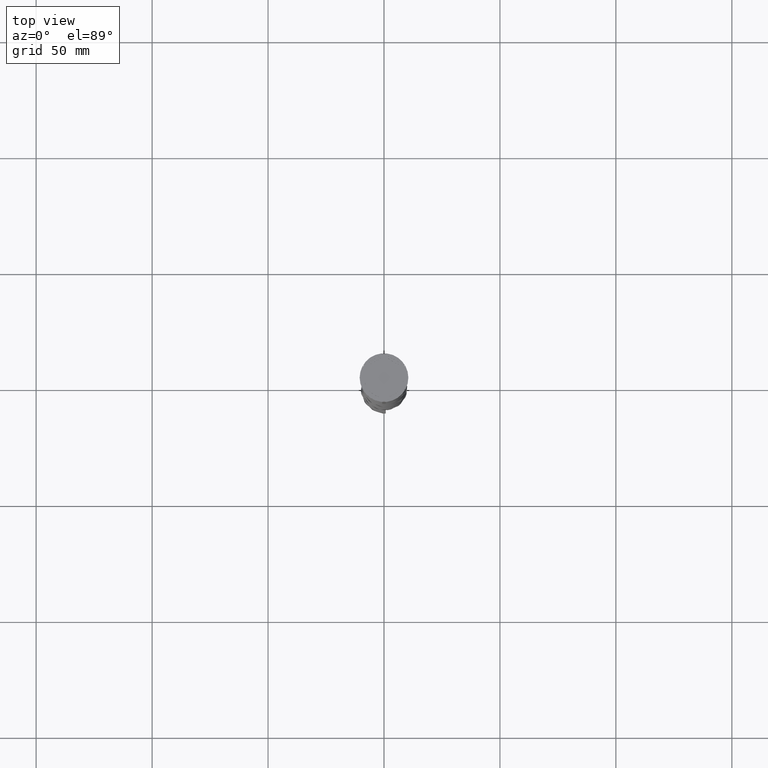
[diagram: clean part render]
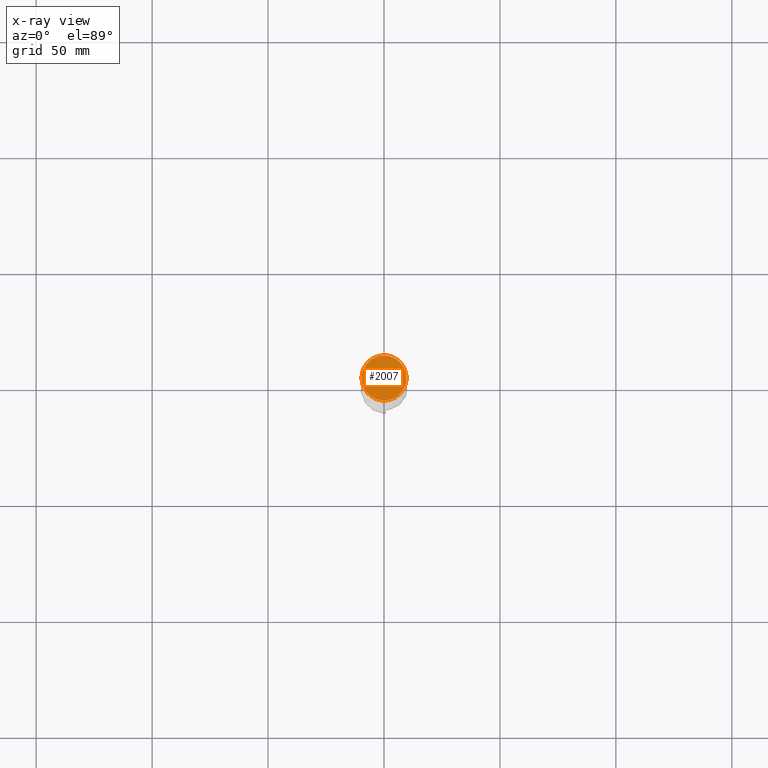
[diagram: x-ray — body ghosted, one internal face saturated and labeled with its STEP entity id]
A machine part, top view, then the same camera in x-ray: the body is ghosted and one INTERNAL B-rep face — a face not visible from any outside direction — is saturated and labeled: STEP entity #2007.
In plain terms, the highlighted planar face has unit normal (0, 0, -1).
Its self-contained STEP definition (entity closure, byte-faithful):
#18 = CARTESIAN_POINT ( 'NONE',  ( 0.000000000000000000, 0.000000000000000000, -12.00000000000000000 ) ) ;
#459 = DIRECTION ( 'NONE',  ( -1.000000000000000000, 0.000000000000000000, 0.000000000000000000 ) ) ;
#581 = PLANE ( 'NONE',  #1582 ) ;
#612 = DIRECTION ( 'NONE',  ( -0.000000000000000000, -0.000000000000000000, 1.000000000000000000 ) ) ;
#815 = DIRECTION ( 'NONE',  ( -0.000000000000000000, -0.000000000000000000, 1.000000000000000000 ) ) ;
#963 = DIRECTION ( 'NONE',  ( -1.000000000000000000, 0.000000000000000000, -0.000000000000000000 ) ) ;
#1338 = DIRECTION ( 'NONE',  ( -1.000000000000000000, 0.000000000000000000, 0.000000000000000000 ) ) ;
#1582 = AXIS2_PLACEMENT_3D ( 'NONE', #3272, #4212, #963 ) ;
#1648 = VERTEX_POINT ( 'NONE', #2045 ) ;
#1763 = EDGE_CURVE ( 'NONE', #1935, #1648, #1860, .T. ) ;
#1860 = CIRCLE ( 'NONE', #2635, 9.700000000000002842 ) ;
#1935 = VERTEX_POINT ( 'NONE', #3480 ) ;
#1951 = ORIENTED_EDGE ( 'NONE', *, *, #3218, .T. ) ;
#1991 = FACE_OUTER_BOUND ( 'NONE', #2044, .T. ) ;
#2007 = ADVANCED_FACE ( 'NONE', ( #1991 ), #581, .F. ) ;
#2044 = EDGE_LOOP ( 'NONE', ( #1951, #2483 ) ) ;
#2045 = CARTESIAN_POINT ( 'NONE',  ( -9.700000000000002842, 0.000000000000000000, -12.00000000000000000 ) ) ;
#2207 = CIRCLE ( 'NONE', #2628, 9.700000000000002842 ) ;
#2483 = ORIENTED_EDGE ( 'NONE', *, *, #1763, .T. ) ;
#2628 = AXIS2_PLACEMENT_3D ( 'NONE', #4107, #815, #459 ) ;
#2635 = AXIS2_PLACEMENT_3D ( 'NONE', #18, #612, #1338 ) ;
#3218 = EDGE_CURVE ( 'NONE', #1648, #1935, #2207, .T. ) ;
#3272 = CARTESIAN_POINT ( 'NONE',  ( 0.000000000000000000, 0.000000000000000000, -12.00000000000000000 ) ) ;
#3480 = CARTESIAN_POINT ( 'NONE',  ( 9.700000000000002842, 1.206277097160143024E-15, -12.00000000000000000 ) ) ;
#4107 = CARTESIAN_POINT ( 'NONE',  ( 0.000000000000000000, 0.000000000000000000, -12.00000000000000000 ) ) ;
#4212 = DIRECTION ( 'NONE',  ( 0.000000000000000000, 0.000000000000000000, -1.000000000000000000 ) ) ;